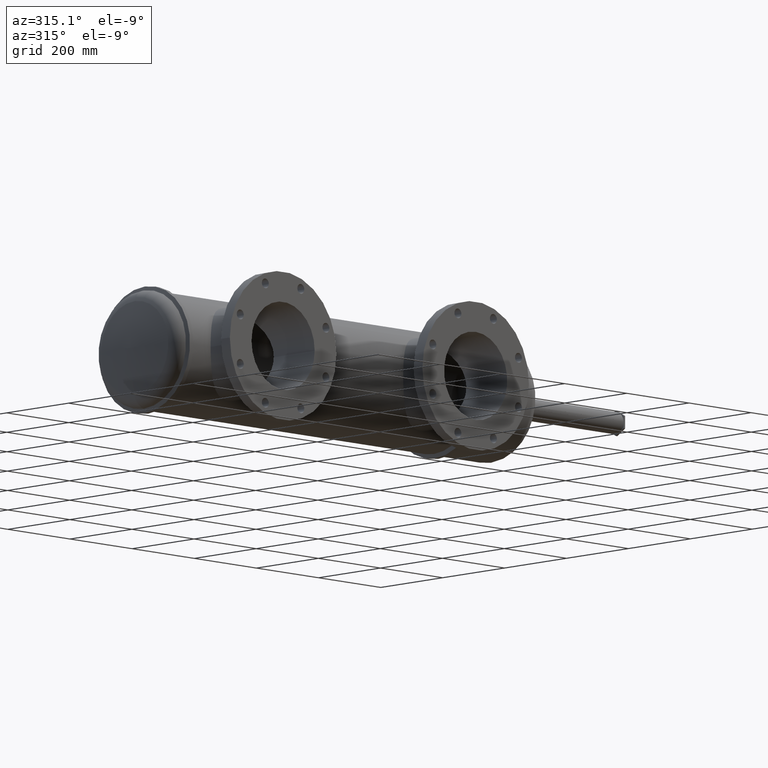
[diagram: clean part render]
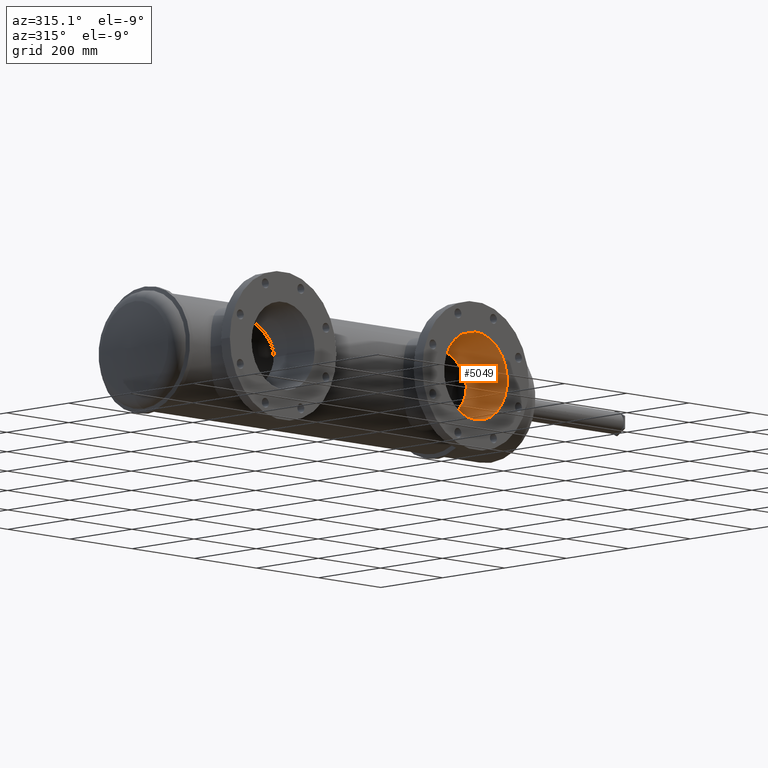
[diagram: same view with one face highlighted and labeled with its STEP entity id]
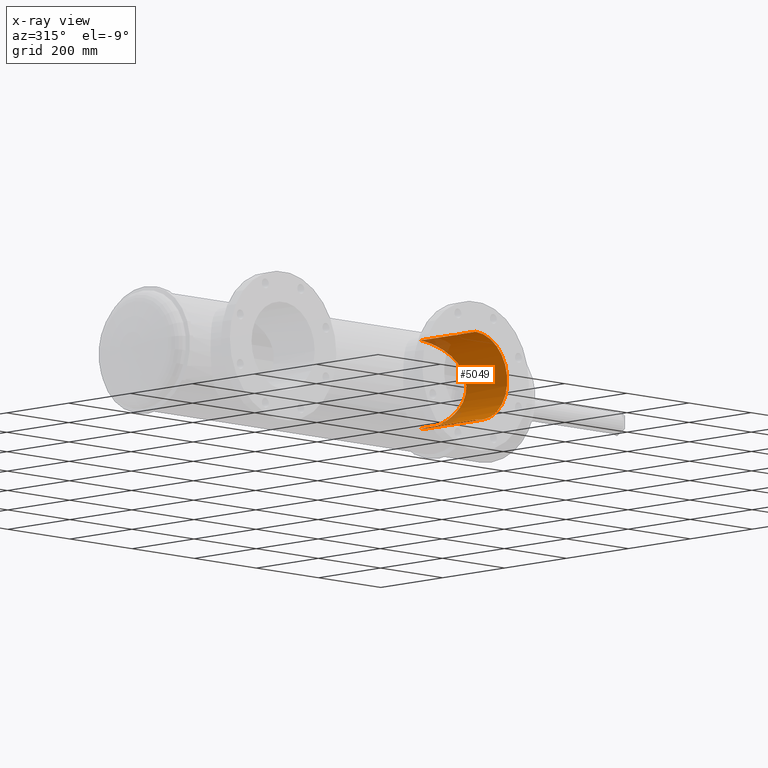
[diagram: x-ray of the same camera — body ghosted, the highlighted face saturated]
A machine part, auxiliary view. The second image highlights one B-rep face of the part: STEP entity #5049.
The next image is the same camera in x-ray: the body ghosted, the highlighted face saturated — about 7% of this face is hidden behind the body in this view.
In plain terms, the highlighted cylindrical surface (partial cylindrical patch) has radius 101.6 mm, axis along (-0, 1, -0).
Its self-contained STEP definition (entity closure, byte-faithful):
#35 = CARTESIAN_POINT ( 'NONE',  ( 33.36400493701278700, -8.000987826643303400, 3.999876310449678400 ) ) ;
#72 = CARTESIAN_POINT ( 'NONE',  ( 33.38698329468649500, -7.992331465481775000, -3.999622922763145900 ) ) ;
#76 = B_SPLINE_CURVE_WITH_KNOTS ( 'NONE', 3,
 ( #6405, #1388, #2488, #2537, #255, #4773, #4189, #305, #4724, #1906, #4161, #4747, #3669, #6464, #1412, #2003, #3028, #332, #6437, #904, #4797, #6988, #1461, #5317, #2457, #6936, #2434, #826, #5363, #5818, #2998, #1948, #5868, #2513, #6913, #3573, #228, #4131, #1359, #4348, #921, #2606, #3195, #380, #2069, #1013, #5922, #2582, #7080, #3718, #3770, #3121, #428, #3743, #5384, #4873, #2555, #2022, #5946, #1549, #5450, #945, #548, #3242, #6052, #3260, #6128, #529, #1131, #6645, #7237, #7170, #1685, #4426, #3310, #4966, #1036, #1642, #3287, #1668, #6032, #3907, #1084, #1618, #569, #5521, #6664, #4995, #6086, #6597, #4451, #2700, #2749, #472 ),
 .UNSPECIFIED., .F., .F.,
 ( 4, 2, 2, 2, 2, 2, 2, 2, 2, 2, 2, 2, 2, 2, 2, 2, 2, 2, 2, 2, 2, 2, 2, 2, 2, 2, 2, 2, 2, 2, 2, 2, 2, 2, 2, 2, 2, 2, 2, 2, 2, 2, 2, 2, 2, 2, 4 ),
 ( 0.3361812455107736600, 0.3466440156593303400, 0.3518754007336086800, 0.3571067858078870200, 0.3675695559564440300, 0.3780323261050009800, 0.3832637111792794900, 0.3884950962535579900, 0.3989578664021149500, 0.4094206365506719600, 0.4146520216249503500, 0.4198834066992287500, 0.4303461768477852600, 0.4408089469963417700, 0.4460403320706201600, 0.4512717171448985000, 0.4617344872934553400, 0.4721972574420121900, 0.4748129499791513600, 0.4774286425162905200, 0.4826600275905688100, 0.4931227977391253700, 0.5035855678876819400, 0.5140483380362383900, 0.5245111081847949600, 0.5349738783333515300, 0.5375895708704906400, 0.5402052634076298700, 0.5454366484819080900, 0.5558994186304648800, 0.5663621887790215600, 0.5715935738532999000, 0.5768249589275782400, 0.5872877290761349100, 0.5977504992246914800, 0.6029818842989698200, 0.6082132693732481600, 0.6186760395218047200, 0.6291388096703614000, 0.6396015798189180800, 0.6422172723560573000, 0.6448329648931965300, 0.6500643499674753100, 0.6605271201160329800, 0.6657585051903116600, 0.6683741977274511000, 0.6709898902645904400 ),
 .UNSPECIFIED. ) ;
#95 = CARTESIAN_POINT ( 'NONE',  ( 33.45654199806773500, -7.888158495943128100, -3.998046397929869500 ) ) ;
#228 = CARTESIAN_POINT ( 'NONE',  ( 37.16570036913421400, -5.051129949010012300, 1.140345541366395200 ) ) ;
#255 = CARTESIAN_POINT ( 'NONE',  ( 33.87943296593301300, -3.333005130698506700, 3.962893513450809600 ) ) ;
#267 = CARTESIAN_POINT ( 'NONE',  ( 33.42560105405225800, -7.797270323361781900, -3.998898114826354700 ) ) ;
#278 = VERTEX_POINT ( 'NONE', #2932 ) ;
#287 = CARTESIAN_POINT ( 'NONE',  ( 33.33154199806774200, -7.754999999999999900, -4.000000000000000900 ) ) ;
#304 = CARTESIAN_POINT ( 'NONE',  ( 33.41427207292114300, -7.785941406318928100, 3.999148512318886800 ) ) ;
#305 = CARTESIAN_POINT ( 'NONE',  ( 34.27976239690775600, -3.419931232675681000, 3.888317880502846400 ) ) ;
#332 = CARTESIAN_POINT ( 'NONE',  ( 35.66658015715633900, -4.032156086005105800, 3.250089515194961400 ) ) ;
#358 = CARTESIAN_POINT ( 'NONE',  ( 33.45256311811529300, -7.847656391328317000, 3.998169134929551400 ) ) ;
#364 = VERTEX_POINT ( 'NONE', #1401 ) ;
#380 = CARTESIAN_POINT ( 'NONE',  ( 37.32482832883318500, -5.172952571245508200, 0.2691523201959462000 ) ) ;
#428 = CARTESIAN_POINT ( 'NONE',  ( 37.12175930471659800, -5.017855669021633600, -1.278823592649419400 ) ) ;
#463 = CARTESIAN_POINT ( 'NONE',  ( 33.33154199806774200, -10.38000000000000100, 4.000000000000000900 ) ) ;
#472 = CARTESIAN_POINT ( 'NONE',  ( 33.33154199806774200, -3.288340141371063100, -4.000000000000000900 ) ) ;
#493 = ORIENTED_EDGE ( 'NONE', *, *, #2283, .T. ) ;
#515 = CARTESIAN_POINT ( 'NONE',  ( 33.33154199806774200, -10.38000000000000100, 0.0000000000000000000 ) ) ;
#523 = FACE_OUTER_BOUND ( 'NONE', #2820, .T. ) ;
#529 = CARTESIAN_POINT ( 'NONE',  ( 36.04969584103597700, -4.265792017215369800, -2.937204213356076300 ) ) ;
#543 = CARTESIAN_POINT ( 'NONE',  ( 33.43998737044110900, -7.942696623302322400, 3.998532240585313000 ) ) ;
#544 = DIRECTION ( 'NONE',  ( -0.0000000000000000000, 1.000000000000000000, -0.0000000000000000000 ) ) ;
#548 = CARTESIAN_POINT ( 'NONE',  ( 36.55107799450171800, -4.601936519862728200, -2.374586060118796000 ) ) ;
#569 = CARTESIAN_POINT ( 'NONE',  ( 34.20981848274357900, -3.403016833238847700, -3.902958812843359200 ) ) ;
#624 = CARTESIAN_POINT ( 'NONE',  ( 33.33154199806774200, -8.005000000000000800, 4.000000000000000900 ) ) ;
#639 = B_SPLINE_CURVE_WITH_KNOTS ( 'NONE', 3,
 ( #773, #6912, #903, #358, #3053, #5890, #2579, #1947, #2512, #304, #4254, #6959, #2536, #6505, #5867, #3075 ),
 .UNSPECIFIED., .F., .F.,
 ( 4, 2, 2, 2, 2, 2, 2, 4 ),
 ( 0.01522636182395991800, 0.01584638268599602600, 0.01646640354803213100, 0.01708642441006823900, 0.01770644527210434700, 0.01832646613414045200, 0.01894648699617656000, 0.02018652872024877300 ),
 .UNSPECIFIED. ) ;
#773 = CARTESIAN_POINT ( 'NONE',  ( 33.45654199806774200, -7.879999999999999900, 3.998046397929869500 ) ) ;
#793 = VECTOR ( 'NONE', #544, 39.37007874015748100 ) ;
#826 = CARTESIAN_POINT ( 'NONE',  ( 36.66499812981472700, -4.682355621769346500, 2.211826717305339400 ) ) ;
#834 = CARTESIAN_POINT ( 'NONE',  ( 33.43087833135808000, -7.803683937217709100, -3.998768933650102700 ) ) ;
#903 = CARTESIAN_POINT ( 'NONE',  ( 33.45575097716757500, -7.863741155316301200, 3.998071369111845900 ) ) ;
#904 = CARTESIAN_POINT ( 'NONE',  ( 35.91126130736393700, -4.179314349407185600, 3.057603314742434600 ) ) ;
#921 = CARTESIAN_POINT ( 'NONE',  ( 37.23487343178838000, -5.103831750748846700, 0.8767220960202217700 ) ) ;
#945 = CARTESIAN_POINT ( 'NONE',  ( 36.58886016292677800, -4.628459725238456300, -2.322499605796424200 ) ) ;
#1013 = CARTESIAN_POINT ( 'NONE',  ( 37.33125285857266100, -5.177921187228247600, -0.1474586446633190100 ) ) ;
#1017 = VERTEX_POINT ( 'NONE', #2182 ) ;
#1036 = CARTESIAN_POINT ( 'NONE',  ( 35.01286315471560300, -3.691712874169288800, -3.631732616843316400 ) ) ;
#1052 = DIRECTION ( 'NONE',  ( 0.0000000000000000000, 0.0000000000000000000, 1.000000000000000000 ) ) ;
#1079 = CARTESIAN_POINT ( 'NONE',  ( 33.33154199806774200, 0.0000000000000000000, 4.000000000000000900 ) ) ;
#1084 = CARTESIAN_POINT ( 'NONE',  ( 34.37106964591463800, -3.448601735495230100, -3.862704440390475100 ) ) ;
#1093 = AXIS2_PLACEMENT_3D ( 'NONE', #4957, #7181, #5513 ) ;
#1103 = EDGE_CURVE ( 'NONE', #3878, #6904, #4526, .T. ) ;
#1106 = CARTESIAN_POINT ( 'NONE',  ( 33.44389096069587500, -7.935408143416928800, 3.998423136472486000 ) ) ;
#1131 = CARTESIAN_POINT ( 'NONE',  ( 35.95712565211726300, -4.207257140613122300, -3.020238683113466200 ) ) ;
#1196 = CARTESIAN_POINT ( 'NONE',  ( 33.33969011877351100, -8.004999999999999000, 4.000000000000000000 ) ) ;
#1316 = CIRCLE ( 'NONE', #6037, 4.000000000000000900 ) ;
#1359 = CARTESIAN_POINT ( 'NONE',  ( 37.19358938298172000, -5.072332786890537000, 1.041994103701419300 ) ) ;
#1368 = CARTESIAN_POINT ( 'NONE',  ( 33.36389232783096800, -7.758980394622565900, -3.999877273558106500 ) ) ;
#1388 = CARTESIAN_POINT ( 'NONE',  ( 33.46959791685426900, -3.288340141371062700, 4.000000000000001800 ) ) ;
#1397 = CARTESIAN_POINT ( 'NONE',  ( 33.44381597847765200, -7.824444897335986600, -3.998425242168445000 ) ) ;
#1401 = CARTESIAN_POINT ( 'NONE',  ( 33.33154199806774200, -7.754999999999999900, -4.000000000000000900 ) ) ;
#1412 = CARTESIAN_POINT ( 'NONE',  ( 35.18740045853647300, -3.775593338638521900, 3.543974180512026600 ) ) ;
#1461 = CARTESIAN_POINT ( 'NONE',  ( 36.09798130355288500, -4.297116698379361400, 2.889769032178718600 ) ) ;
#1545 = B_SPLINE_CURVE_WITH_KNOTS ( 'NONE', 3,
 ( #3509, #95, #1822, #6247, #5643, #2888, #2866, #4030, #2280, #2838, #6762, #3410, #72, #3981, #4749, #2634, #6665, #3311 ),
 .UNSPECIFIED., .F., .F.,
 ( 4, 2, 2, 2, 2, 2, 2, 2, 4 ),
 ( 0.0003471828444833504100, 0.0009677955123058783000, 0.001588408180128406000, 0.002209020847950934200, 0.002829633515773461900, 0.003450246183595989700, 0.004070858851418517400, 0.004691471519241045100, 0.005312084187063572900 ),
 .UNSPECIFIED. ) ;
#1549 = CARTESIAN_POINT ( 'NONE',  ( 36.76607998850258200, -4.754721927914834700, -2.054434600302981600 ) ) ;
#1618 = CARTESIAN_POINT ( 'NONE',  ( 34.27463260200328000, -3.420354079458029600, -3.887800587809271400 ) ) ;
#1630 = LINE ( 'NONE', #1760, #5554 ) ;
#1642 = CARTESIAN_POINT ( 'NONE',  ( 34.77767745234989900, -3.590711749172781800, -3.731623625166852900 ) ) ;
#1668 = CARTESIAN_POINT ( 'NONE',  ( 34.49867748733597500, -3.489198947357069700, -3.826079729945829100 ) ) ;
#1685 = CARTESIAN_POINT ( 'NONE',  ( 35.61095544087451300, -4.000880803857715900, -3.287583562813693100 ) ) ;
#1706 = CARTESIAN_POINT ( 'NONE',  ( 33.34796263055307000, -8.004186389872652200, 3.999974337933966100 ) ) ;
#1729 = ORIENTED_EDGE ( 'NONE', *, *, #5865, .T. ) ;
#1749 = CARTESIAN_POINT ( 'NONE',  ( 33.37179443682193600, -7.998623985854633700, 3.999804603967390900 ) ) ;
#1760 = CARTESIAN_POINT ( 'NONE',  ( 33.33154199806774200, 0.0000000000000000000, -4.000000000000000900 ) ) ;
#1802 = VECTOR ( 'NONE', #3336, 39.37007874015748100 ) ;
#1815 = CARTESIAN_POINT ( 'NONE',  ( 33.45572367522194700, -7.896446380743536300, 3.998072217963493500 ) ) ;
#1822 = CARTESIAN_POINT ( 'NONE',  ( 33.45575096663740300, -7.896270613126131500, -3.998071372134285500 ) ) ;
#1841 = CARTESIAN_POINT ( 'NONE',  ( 33.45654199806774200, -7.879999999999999900, 3.998046397929869500 ) ) ;
#1906 = CARTESIAN_POINT ( 'NONE',  ( 34.65769642602131700, -3.543740606010106200, 3.776038631630537400 ) ) ;
#1947 = CARTESIAN_POINT ( 'NONE',  ( 33.43094635358468700, -7.803765764558671800, 3.998767272775257000 ) ) ;
#1948 = CARTESIAN_POINT ( 'NONE',  ( 36.89624677198914800, -4.849580432939165000, 1.819329458471735400 ) ) ;
#2003 = CARTESIAN_POINT ( 'NONE',  ( 35.35331931815253600, -3.858966002683278600, 3.453732899010542000 ) ) ;
#2016 = EDGE_CURVE ( 'NONE', #364, #2380, #3289, .T. ) ;
#2022 = CARTESIAN_POINT ( 'NONE',  ( 36.94946415366846500, -4.888897347990245600, -1.711151357894148000 ) ) ;
#2069 = CARTESIAN_POINT ( 'NONE',  ( 37.33181488158673000, -5.178355336989104900, 0.1313311726498560300 ) ) ;
#2182 = CARTESIAN_POINT ( 'NONE',  ( 33.33154199806774200, -8.005000000000000800, -4.000000000000000900 ) ) ;
#2274 = CARTESIAN_POINT ( 'NONE',  ( 33.40778353780655200, -7.979391145671776500, 3.999279074304709100 ) ) ;
#2280 = CARTESIAN_POINT ( 'NONE',  ( 33.42572281318141600, -7.962592204525218000, -3.998895249722880200 ) ) ;
#2283 = EDGE_CURVE ( 'NONE', #6904, #2380, #76, .T. ) ;
#2380 = VERTEX_POINT ( 'NONE', #4127 ) ;
#2434 = CARTESIAN_POINT ( 'NONE',  ( 36.55614611199937500, -4.605282464872508400, 2.370307395061636200 ) ) ;
#2457 = CARTESIAN_POINT ( 'NONE',  ( 36.31731023137737700, -4.441225471349791400, 2.664790148480803600 ) ) ;
#2488 = CARTESIAN_POINT ( 'NONE',  ( 33.60681331034606200, -3.297064533818266300, 3.992872739208814400 ) ) ;
#2497 = CARTESIAN_POINT ( 'NONE',  ( 33.45323410330404100, -7.847086538323415200, -3.998153384635289200 ) ) ;
#2512 = CARTESIAN_POINT ( 'NONE',  ( 33.42577384270807500, -7.797467316860581500, 3.998894028143694900 ) ) ;
#2513 = CARTESIAN_POINT ( 'NONE',  ( 37.05838669920739600, -4.970044364853333000, 1.458795216944733600 ) ) ;
#2536 = CARTESIAN_POINT ( 'NONE',  ( 33.38709533211310500, -7.767725370759641200, 3.999621326066629600 ) ) ;
#2537 = CARTESIAN_POINT ( 'NONE',  ( 33.81142887899766000, -3.322482828202809400, 3.971701188814617600 ) ) ;
#2555 = CARTESIAN_POINT ( 'NONE',  ( 37.02811987765542100, -4.947480451974626300, -1.529595339802457500 ) ) ;
#2579 = CARTESIAN_POINT ( 'NONE',  ( 33.44009262565291600, -7.817472839502115400, 3.998529440802590000 ) ) ;
#2582 = CARTESIAN_POINT ( 'NONE',  ( 37.29498506380063800, -5.149949329036754600, -0.5565568773637726800 ) ) ;
#2587 = ORIENTED_EDGE ( 'NONE', *, *, #1103, .T. ) ;
#2606 = CARTESIAN_POINT ( 'NONE',  ( 37.27624712041792100, -5.135519923061409000, 0.6766484746093395200 ) ) ;
#2634 = CARTESIAN_POINT ( 'NONE',  ( 33.34791673139753200, -8.004190460744558400, -3.999974468615934000 ) ) ;
#2700 = CARTESIAN_POINT ( 'NONE',  ( 33.40133750303093100, -3.288896347740341700, -3.999542943798968200 ) ) ;
#2749 = CARTESIAN_POINT ( 'NONE',  ( 33.36633213595180800, -3.288340141371060500, -3.999999999999999600 ) ) ;
#2820 = EDGE_LOOP ( 'NONE', ( #5632, #3961, #6440, #5366, #5020, #2587, #493, #6413, #1729, #7032 ) ) ;
#2838 = CARTESIAN_POINT ( 'NONE',  ( 33.41419407537671300, -7.974128275774727800, -3.999150144506731700 ) ) ;
#2863 = EDGE_CURVE ( 'NONE', #6950, #3878, #639, .T. ) ;
#2866 = CARTESIAN_POINT ( 'NONE',  ( 33.44004326542963700, -7.942611397298545500, -3.998530779307772700 ) ) ;
#2888 = CARTESIAN_POINT ( 'NONE',  ( 33.44391802602400800, -7.935343971026056500, -3.998422356785514200 ) ) ;
#2932 = CARTESIAN_POINT ( 'NONE',  ( 33.45654199806774200, -7.879999999999999900, -3.998046397929870400 ) ) ;
#2998 = CARTESIAN_POINT ( 'NONE',  ( 36.80147714591944200, -4.780498212204761900, 1.990934459148173700 ) ) ;
#3028 = CARTESIAN_POINT ( 'NONE',  ( 35.46004135122021200, -3.916170194702807800, 3.388949035439987200 ) ) ;
#3053 = CARTESIAN_POINT ( 'NONE',  ( 33.45016052595572400, -7.839740031579811600, 3.998242029695759500 ) ) ;
#3075 = CARTESIAN_POINT ( 'NONE',  ( 33.33154199806774200, -7.754999999999999900, 4.000000000000000900 ) ) ;
#3121 = CARTESIAN_POINT ( 'NONE',  ( 37.13245939703626400, -5.025943592645293600, -1.246663506449976900 ) ) ;
#3191 = EDGE_CURVE ( 'NONE', #6145, #6950, #5138, .T. ) ;
#3195 = CARTESIAN_POINT ( 'NONE',  ( 37.29704565717418800, -5.151535873432694100, 0.5418112407088218100 ) ) ;
#3212 = CARTESIAN_POINT ( 'NONE',  ( 33.33154199806774200, -8.005000000000000800, 4.000000000000000900 ) ) ;
#3242 = CARTESIAN_POINT ( 'NONE',  ( 36.47370493824558200, -4.548141999007856200, -2.476062003791023700 ) ) ;
#3249 = DIRECTION ( 'NONE',  ( -0.0000000000000000000, 1.000000000000000000, -0.0000000000000000000 ) ) ;
#3260 = CARTESIAN_POINT ( 'NONE',  ( 36.31224690344802000, -4.437820498159337200, -2.670453926256383800 ) ) ;
#3287 = CARTESIAN_POINT ( 'NONE',  ( 34.65626469237134400, -3.543168305256188900, -3.776581971384286100 ) ) ;
#3289 = LINE ( 'NONE', #6708, #1802 ) ;
#3305 = CARTESIAN_POINT ( 'NONE',  ( 33.41409054064369100, -7.974226264230040300, 3.999152371572506100 ) ) ;
#3310 = CARTESIAN_POINT ( 'NONE',  ( 35.34755577283365800, -3.855950941120411800, -3.457090240743028200 ) ) ;
#3311 = CARTESIAN_POINT ( 'NONE',  ( 33.33154199806774200, -8.005000000000000800, -4.000000000000000900 ) ) ;
#3336 = DIRECTION ( 'NONE',  ( -0.0000000000000000000, 1.000000000000000000, -0.0000000000000000000 ) ) ;
#3410 = CARTESIAN_POINT ( 'NONE',  ( 33.39416484045489100, -7.988490638164416100, -3.999515547757476900 ) ) ;
#3445 = VERTEX_POINT ( 'NONE', #463 ) ;
#3478 = CARTESIAN_POINT ( 'NONE',  ( 33.45654199806774900, -7.888161934004188000, 3.998046397929870400 ) ) ;
#3509 = CARTESIAN_POINT ( 'NONE',  ( 33.45654199806774200, -7.879999999999999900, -3.998046397929870400 ) ) ;
#3536 = CARTESIAN_POINT ( 'NONE',  ( 33.33154199806774200, -10.38000000000000100, -4.000000000000000900 ) ) ;
#3573 = CARTESIAN_POINT ( 'NONE',  ( 37.15589596652690600, -5.043691109782980000, 1.172799103384210900 ) ) ;
#3582 = CARTESIAN_POINT ( 'NONE',  ( 33.34779947573969100, -7.755790567422415000, -3.999975055144990900 ) ) ;
#3591 = EDGE_CURVE ( 'NONE', #3445, #4574, #1316, .T. ) ;
#3635 = VECTOR ( 'NONE', #5987, 39.37007874015748100 ) ;
#3651 = CARTESIAN_POINT ( 'NONE',  ( 33.33969786035201800, -7.754999999999999900, -4.000000000000001800 ) ) ;
#3669 = CARTESIAN_POINT ( 'NONE',  ( 35.01643745237095800, -3.694521123688927500, 3.628386004510466100 ) ) ;
#3718 = CARTESIAN_POINT ( 'NONE',  ( 37.21820264604470200, -5.091069840508678700, -0.9550576179282040900 ) ) ;
#3743 = CARTESIAN_POINT ( 'NONE',  ( 37.09966146193547600, -5.001185117298783600, -1.342539652583294200 ) ) ;
#3770 = CARTESIAN_POINT ( 'NONE',  ( 37.18378192143524100, -5.064801467938703900, -1.085603576976844600 ) ) ;
#3875 = CARTESIAN_POINT ( 'NONE',  ( 33.43093994710442000, -7.956231968950112900, 3.998767375769276500 ) ) ;
#3878 = VERTEX_POINT ( 'NONE', #3899 ) ;
#3899 = CARTESIAN_POINT ( 'NONE',  ( 33.33154199806774200, -7.754999999999999900, 4.000000000000000900 ) ) ;
#3907 = CARTESIAN_POINT ( 'NONE',  ( 34.40308458347798400, -3.458391313246414400, -3.853945649371340700 ) ) ;
#3961 = ORIENTED_EDGE ( 'NONE', *, *, #3591, .F. ) ;
#3981 = CARTESIAN_POINT ( 'NONE',  ( 33.37185009139231800, -7.998605873044247100, -3.999804060110409700 ) ) ;
#4030 = CARTESIAN_POINT ( 'NONE',  ( 33.43089909365325200, -7.956294689511301100, -3.998768446115323900 ) ) ;
#4127 = CARTESIAN_POINT ( 'NONE',  ( 33.33154199806774200, -3.288340141371063100, -4.000000000000000900 ) ) ;
#4131 = CARTESIAN_POINT ( 'NONE',  ( 37.18454955422218000, -5.065452652542503200, 1.074937737894731300 ) ) ;
#4161 = CARTESIAN_POINT ( 'NONE',  ( 34.77946140488810300, -3.591393390482626300, 3.730986988389695600 ) ) ;
#4189 = CARTESIAN_POINT ( 'NONE',  ( 34.08199924765466400, -3.372280189328182900, 3.929548114312386700 ) ) ;
#4197 = CARTESIAN_POINT ( 'NONE',  ( 33.45654199806774200, -7.879999999999999900, -3.998046397929870400 ) ) ;
#4254 = CARTESIAN_POINT ( 'NONE',  ( 33.40786202471950600, -7.780666439396521000, 3.999277619124673100 ) ) ;
#4348 = CARTESIAN_POINT ( 'NONE',  ( 37.21938272681831000, -5.091990030101233500, 0.9430489540558946200 ) ) ;
#4426 = CARTESIAN_POINT ( 'NONE',  ( 35.45471430156177900, -3.913260051157232900, -3.392324376087859000 ) ) ;
#4451 = CARTESIAN_POINT ( 'NONE',  ( 33.47103227074789800, -3.291113080682442700, -3.997719054114834000 ) ) ;
#4526 = LINE ( 'NONE', #1079, #793 ) ;
#4557 = CARTESIAN_POINT ( 'NONE',  ( 33.45253206226307400, -7.912449603177838900, 3.998170075591879400 ) ) ;
#4574 = VERTEX_POINT ( 'NONE', #3536 ) ;
#4724 = CARTESIAN_POINT ( 'NONE',  ( 34.40784565363515700, -3.458011202250761900, 3.854701513134233300 ) ) ;
#4733 = CARTESIAN_POINT ( 'NONE',  ( 33.43997291883287900, -7.817273737779270700, -3.998532659271243800 ) ) ;
#4747 = CARTESIAN_POINT ( 'NONE',  ( 34.95799600841640900, -3.668194008082485100, 3.654973458353128400 ) ) ;
#4749 = CARTESIAN_POINT ( 'NONE',  ( 33.36390161179127700, -8.001013461363728000, -3.999877090220474300 ) ) ;
#4773 = CARTESIAN_POINT ( 'NONE',  ( 34.01504904115984100, -3.357963753013234700, 3.941767069939867700 ) ) ;
#4797 = CARTESIAN_POINT ( 'NONE',  ( 35.95873925117846400, -4.208804428318780200, 3.016914559421397500 ) ) ;
#4873 = CARTESIAN_POINT ( 'NONE',  ( 37.05300630151247500, -4.966108839648699200, -1.468052168359923700 ) ) ;
#4957 = CARTESIAN_POINT ( 'NONE',  ( 33.33154199806774200, 0.0000000000000000000, 0.0000000000000000000 ) ) ;
#4966 = CARTESIAN_POINT ( 'NONE',  ( 35.12662804642933200, -3.745180909022147300, -3.576793333652939800 ) ) ;
#4973 = EDGE_CURVE ( 'NONE', #278, #1017, #1545, .T. ) ;
#4995 = CARTESIAN_POINT ( 'NONE',  ( 33.67758709601388000, -3.305814998847286500, -3.985585174230376300 ) ) ;
#5007 = CARTESIAN_POINT ( 'NONE',  ( 33.45017091493520000, -7.920243407452456800, 3.998241744537832400 ) ) ;
#5020 = ORIENTED_EDGE ( 'NONE', *, *, #2863, .T. ) ;
#5049 = ADVANCED_FACE ( 'NONE', ( #523 ), #5574, .F. ) ;
#5127 = CARTESIAN_POINT ( 'NONE',  ( 33.33154199806774200, -3.288340141371060500, 4.000000000000000900 ) ) ;
#5138 = B_SPLINE_CURVE_WITH_KNOTS ( 'NONE', 3,
 ( #3212, #1196, #1706, #35, #1749, #5635, #6660, #2274, #3305, #7214, #3875, #543, #1106, #5007, #4557, #1815, #3478, #1841 ),
 .UNSPECIFIED., .F., .F.,
 ( 4, 2, 2, 2, 2, 2, 2, 2, 4 ),
 ( 0.01026389366874490800, 0.01088420218814678400, 0.01150451070754866100, 0.01212481922695053700, 0.01274512774635241200, 0.01336543626575429000, 0.01398574478515616500, 0.01460605330455804300, 0.01522636182395991800 ),
 .UNSPECIFIED. ) ;
#5249 = CARTESIAN_POINT ( 'NONE',  ( 33.45654199806774200, -7.879999999999999900, 3.998046397929869500 ) ) ;
#5310 = LINE ( 'NONE', #6561, #3635 ) ;
#5317 = CARTESIAN_POINT ( 'NONE',  ( 36.23213857277870900, -4.384292393009229900, 2.757235113635427400 ) ) ;
#5363 = CARTESIAN_POINT ( 'NONE',  ( 36.70021323187978600, -4.707500900253454500, 2.157838336292281500 ) ) ;
#5366 = ORIENTED_EDGE ( 'NONE', *, *, #3191, .T. ) ;
#5384 = CARTESIAN_POINT ( 'NONE',  ( 37.08825764333658300, -4.992597842283890600, -1.374120079651788300 ) ) ;
#5431 = B_SPLINE_CURVE_WITH_KNOTS ( 'NONE', 3,
 ( #287, #3651, #3582, #1368, #5847, #5826, #5875, #6395, #6945, #267, #834, #4733, #1397, #2497, #6416, #4197 ),
 .UNSPECIFIED., .F., .F.,
 ( 4, 2, 2, 2, 2, 2, 2, 4 ),
 ( 0.01523899326706827700, 0.01585901518391783600, 0.01647903710076739300, 0.01709905901761695300, 0.01771908093446650900, 0.01833910285131606900, 0.01895912476816562600, 0.02019916860186479400 ),
 .UNSPECIFIED. ) ;
#5450 = CARTESIAN_POINT ( 'NONE',  ( 36.69820010815959000, -4.705838435212761800, -2.163820083540564100 ) ) ;
#5513 = DIRECTION ( 'NONE',  ( 0.0000000000000000000, 0.0000000000000000000, 1.000000000000000000 ) ) ;
#5521 = CARTESIAN_POINT ( 'NONE',  ( 34.01371402449658600, -3.355954700629158300, -3.943661958066714000 ) ) ;
#5554 = VECTOR ( 'NONE', #5673, 39.37007874015748100 ) ;
#5574 = CYLINDRICAL_SURFACE ( 'NONE', #1093, 4.000000000000000900 ) ;
#5632 = ORIENTED_EDGE ( 'NONE', *, *, #7168, .F. ) ;
#5635 = CARTESIAN_POINT ( 'NONE',  ( 33.38691006883107100, -7.992366745906639200, 3.999623920506069700 ) ) ;
#5643 = CARTESIAN_POINT ( 'NONE',  ( 33.45014917445020300, -7.920294720482196700, -3.998242370418786600 ) ) ;
#5673 = DIRECTION ( 'NONE',  ( -0.0000000000000000000, 1.000000000000000000, -0.0000000000000000000 ) ) ;
#5818 = CARTESIAN_POINT ( 'NONE',  ( 36.76844475317733400, -4.756565924325477600, 2.047415839297286800 ) ) ;
#5826 = CARTESIAN_POINT ( 'NONE',  ( 33.38683982696558400, -7.767601768721449100, -3.999624819520312800 ) ) ;
#5847 = CARTESIAN_POINT ( 'NONE',  ( 33.37180137812334400, -7.761381305887731200, -3.999804461360734200 ) ) ;
#5865 = EDGE_CURVE ( 'NONE', #364, #278, #5431, .T. ) ;
#5867 = CARTESIAN_POINT ( 'NONE',  ( 33.34784737304951100, -7.754999999999999900, 4.000000000000000900 ) ) ;
#5868 = CARTESIAN_POINT ( 'NONE',  ( 36.95400325581084600, -4.892258693696353700, 1.701537348265864400 ) ) ;
#5875 = CARTESIAN_POINT ( 'NONE',  ( 33.39407787621898600, -7.771454790642425600, -3.999516994212848800 ) ) ;
#5890 = CARTESIAN_POINT ( 'NONE',  ( 33.44393955839829100, -7.824700735563255600, 3.998421747591880400 ) ) ;
#5922 = CARTESIAN_POINT ( 'NONE',  ( 37.32370785487252400, -5.172087140079701900, -0.2850408125326074900 ) ) ;
#5946 = CARTESIAN_POINT ( 'NONE',  ( 36.89171136354588800, -4.846249613354940400, -1.828099237944522900 ) ) ;
#5987 = DIRECTION ( 'NONE',  ( -0.0000000000000000000, 1.000000000000000000, -0.0000000000000000000 ) ) ;
#6032 = CARTESIAN_POINT ( 'NONE',  ( 34.46686010607268000, -3.478679946409919800, -3.835642498238332800 ) ) ;
#6037 = AXIS2_PLACEMENT_3D ( 'NONE', #515, #3249, #1052 ) ;
#6052 = CARTESIAN_POINT ( 'NONE',  ( 36.43405242001039600, -4.520826123896850600, -2.525551535415838000 ) ) ;
#6086 = CARTESIAN_POINT ( 'NONE',  ( 33.60923510321442400, -3.299325681021585900, -3.990947637022894700 ) ) ;
#6128 = CARTESIAN_POINT ( 'NONE',  ( 36.22725715508104800, -4.381071500289851700, -2.762311103848205100 ) ) ;
#6145 = VERTEX_POINT ( 'NONE', #624 ) ;
#6247 = CARTESIAN_POINT ( 'NONE',  ( 33.45254962733361700, -7.912399913334583700, -3.998169545956288000 ) ) ;
#6302 = EDGE_CURVE ( 'NONE', #3445, #6145, #5310, .T. ) ;
#6395 = CARTESIAN_POINT ( 'NONE',  ( 33.40777589575122200, -7.780595818123118500, -3.999279349570058700 ) ) ;
#6405 = CARTESIAN_POINT ( 'NONE',  ( 33.33154199806774200, -3.288340141371060500, 4.000000000000000900 ) ) ;
#6413 = ORIENTED_EDGE ( 'NONE', *, *, #2016, .F. ) ;
#6416 = CARTESIAN_POINT ( 'NONE',  ( 33.45654199806774900, -7.863698539989472100, -3.998046397929871300 ) ) ;
#6437 = CARTESIAN_POINT ( 'NONE',  ( 35.76639302483086900, -4.090944112560499100, 3.176013138793459600 ) ) ;
#6440 = ORIENTED_EDGE ( 'NONE', *, *, #6302, .T. ) ;
#6464 = CARTESIAN_POINT ( 'NONE',  ( 35.13111786030780300, -3.748211163396364000, 3.572895801125744800 ) ) ;
#6505 = CARTESIAN_POINT ( 'NONE',  ( 33.36446239477739100, -7.758310605807468000, 3.999892991928986500 ) ) ;
#6561 = CARTESIAN_POINT ( 'NONE',  ( 33.33154199806774200, 0.0000000000000000000, 4.000000000000000900 ) ) ;
#6597 = CARTESIAN_POINT ( 'NONE',  ( 33.50570790589013400, -3.292769130938642400, -3.996355885313338100 ) ) ;
#6645 = CARTESIAN_POINT ( 'NONE',  ( 35.81229502618078400, -4.118962494514025100, -3.138430693890621000 ) ) ;
#6660 = CARTESIAN_POINT ( 'NONE',  ( 33.39423765827709200, -7.988446421843255200, 3.999514363112624900 ) ) ;
#6664 = CARTESIAN_POINT ( 'NONE',  ( 33.88076439979320800, -3.331180718253644800, -3.964454605222890800 ) ) ;
#6665 = CARTESIAN_POINT ( 'NONE',  ( 33.33979602111740100, -8.005000000000004300, -4.000000000000001800 ) ) ;
#6708 = CARTESIAN_POINT ( 'NONE',  ( 33.33154199806774200, 0.0000000000000000000, -4.000000000000000900 ) ) ;
#6762 = CARTESIAN_POINT ( 'NONE',  ( 33.40776237189828600, -7.979409725736968700, -3.999279521583302800 ) ) ;
#6904 = VERTEX_POINT ( 'NONE', #5127 ) ;
#6912 = CARTESIAN_POINT ( 'NONE',  ( 33.45654199806773500, -7.871841850951785300, 3.998046397929869500 ) ) ;
#6913 = CARTESIAN_POINT ( 'NONE',  ( 37.10501615292223200, -5.005155509514429100, 1.333847446350670400 ) ) ;
#6936 = CARTESIAN_POINT ( 'NONE',  ( 36.47931416697751700, -4.551718507518685900, 2.471325322801186000 ) ) ;
#6945 = CARTESIAN_POINT ( 'NONE',  ( 33.41407324787643800, -7.785766788156322200, -3.999152639194896200 ) ) ;
#6950 = VERTEX_POINT ( 'NONE', #5249 ) ;
#6959 = CARTESIAN_POINT ( 'NONE',  ( 33.39426682897341400, -7.771568001410349400, 3.999513947580066300 ) ) ;
#6988 = CARTESIAN_POINT ( 'NONE',  ( 36.05209410279063300, -4.267701145065741400, 2.933007860727470600 ) ) ;
#7032 = ORIENTED_EDGE ( 'NONE', *, *, #4973, .T. ) ;
#7080 = CARTESIAN_POINT ( 'NONE',  ( 37.27380387335528400, -5.133642938669389400, -0.6905341068692266700 ) ) ;
#7168 = EDGE_CURVE ( 'NONE', #4574, #1017, #1630, .T. ) ;
#7170 = CARTESIAN_POINT ( 'NONE',  ( 35.66237981080730900, -4.030424880007260800, -3.251325414364178500 ) ) ;
#7181 = DIRECTION ( 'NONE',  ( -0.0000000000000000000, 1.000000000000000000, -0.0000000000000000000 ) ) ;
#7214 = CARTESIAN_POINT ( 'NONE',  ( 33.42574152552757000, -7.962579051692952000, 3.998894897588801900 ) ) ;
#7237 = CARTESIAN_POINT ( 'NONE',  ( 35.76301921177628900, -4.089449992953674100, -3.176765716668943400 ) ) ;